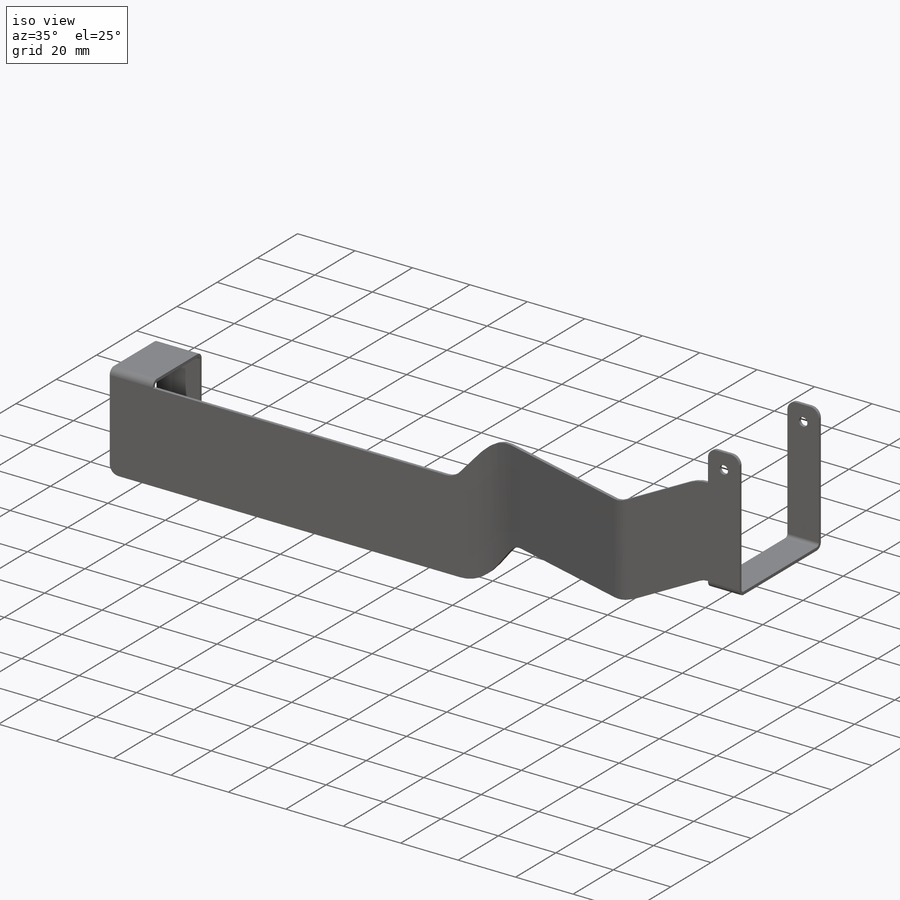
[diagram: iso view]
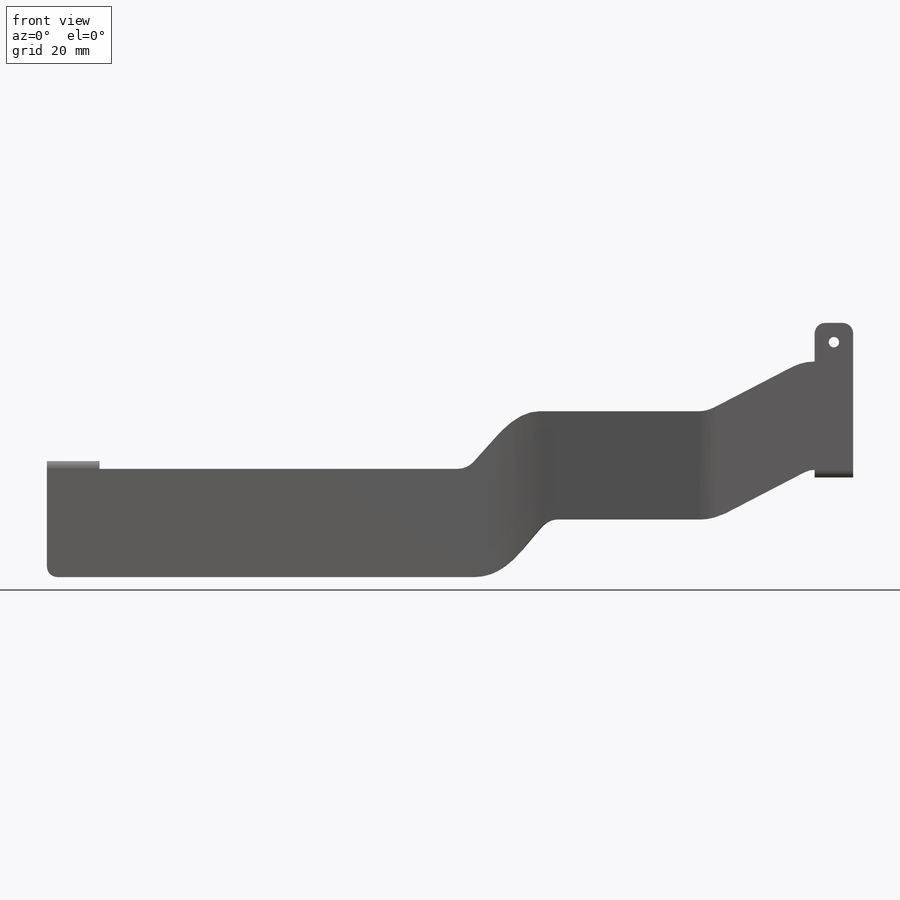
[diagram: front view]
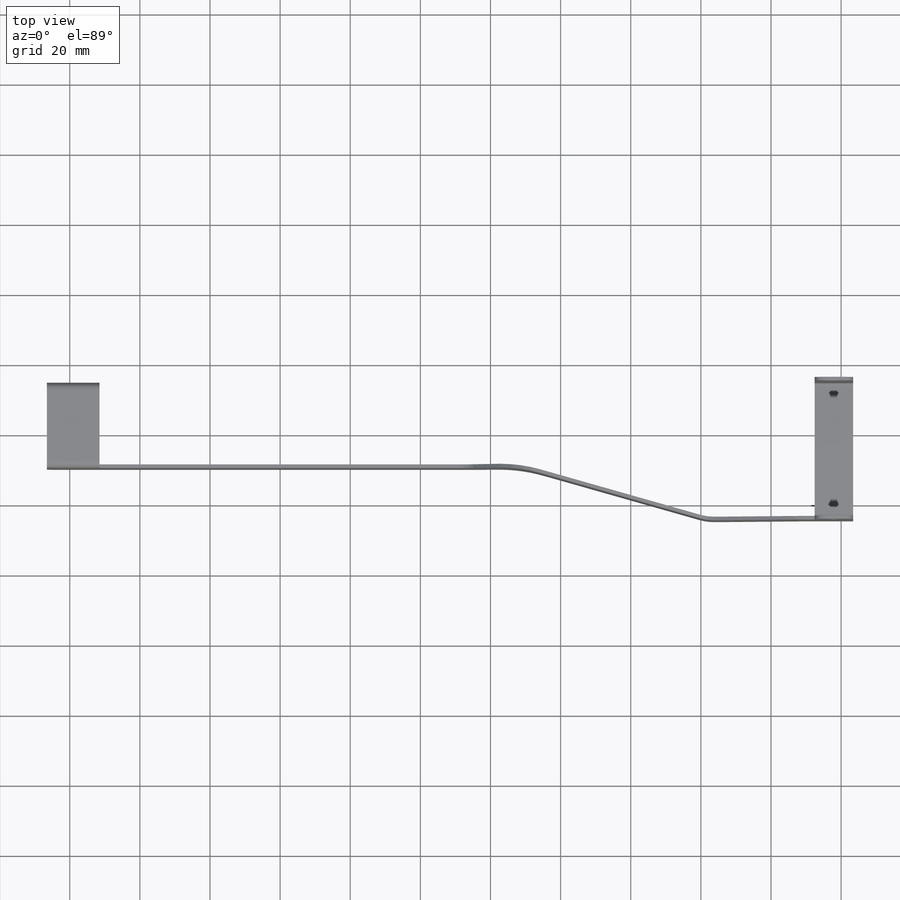
[diagram: top view]
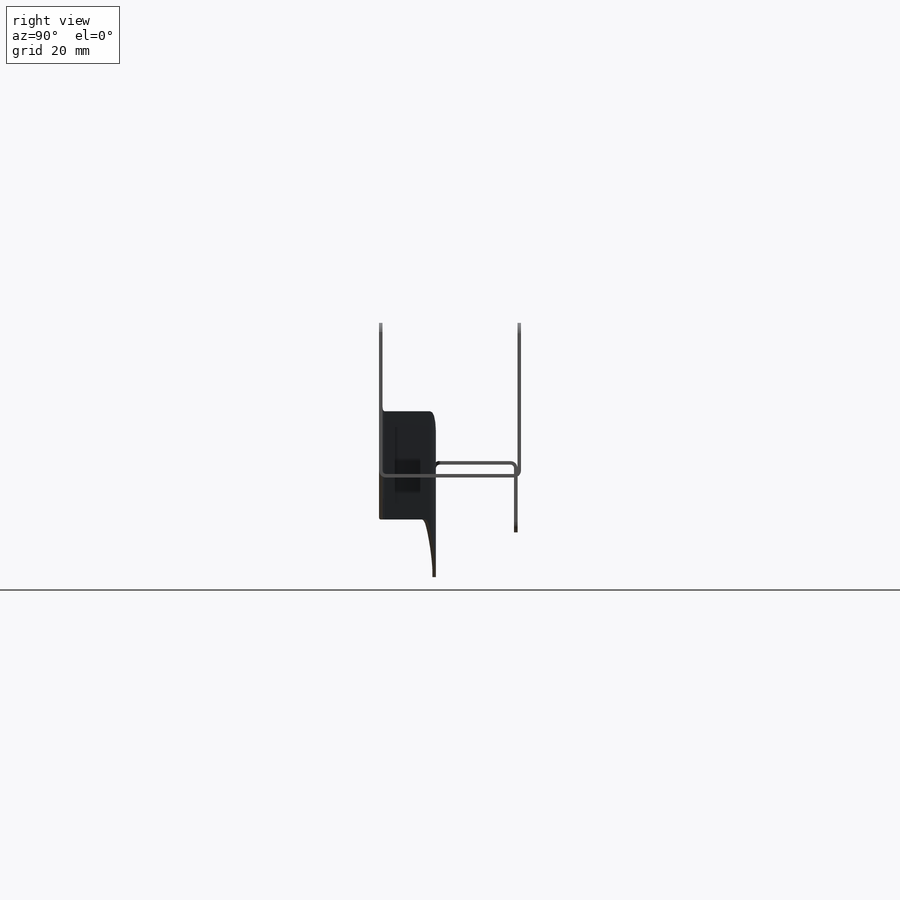
[diagram: right view]
SOLIDWORKS PART (.sldprt)
format: sldprt  version: not decoded by parser v0  size: 422,912 bytes
history: native  units: mm
features: sketch x7, cut_extrude x2, fillet x2, material x1, sheet_metal_op x1 + 6 further entries (+11 scaffold rows collapsed; 1 parser-record rows omitted)
feature tree (31):
  scaffold x11  (default folders/planes/origin — collapsed)
  material  "Material <not specified>"
  sketch  "Sketch1"  dims[D1=200.0mm D5=1.016mm D6=1.0mm D7=5.0mm]
  sketch  "Sketch2"  dims[D1=122.0mm]
  cut_extrude  "Cut-Extrude1"  Depth=108mm
  sketch  "Sketch3"  dims[D3=2.0mm D1=40.5mm D2=2.2mm D5=1.016mm D6=1.0mm D7=5.0mm]
  sketch  "Sketch4"
  cut_extrude  "Cut-Extrude2"  Depth=108mm
  fillet  "Fillet1"  Radius=3mm
  sketch  "Sketch5"  dims[c1.D2=2.0mm c1.D1=2.2mm c1.D3=24.3mm c1.D4=~20.316504mm c2.D1=15.0mm c2.D5=1.016mm c2.D6=1.0mm c2.D7=5.0mm]
  fillet  "Fillet2"  Radius=3mm
  sheet_metal_op  "Sheet-Metal5"  SharpBend2=0 SharpBend3=0 SharpBend4=0 SharpBend5=0 SharpBend6=0
  "Flat-Pattern1"
  sketch  "Bend-Lines1"
  sketch  "Bounding-Box1"
  "Flatten-<SharpBend2>1"
  "Flatten-<SharpBend3>1"
  "Flatten-<SharpBend4>1"
  "Flatten-<SharpBend5>1"
  "Flatten-<SharpBend6>1"
  parser-record x1  (decoder bookkeeping rows leaked as tree rows — omitted from the tree; the rows remain in map.json)
decode coverage: 9 of 12 modeling features carry decoded parameters; 6 rows unclassified (native names shown)
note: ~ marks probable driven/reference dimensions
note: suppression state not decoded; provenance and decode notes live in map.json
